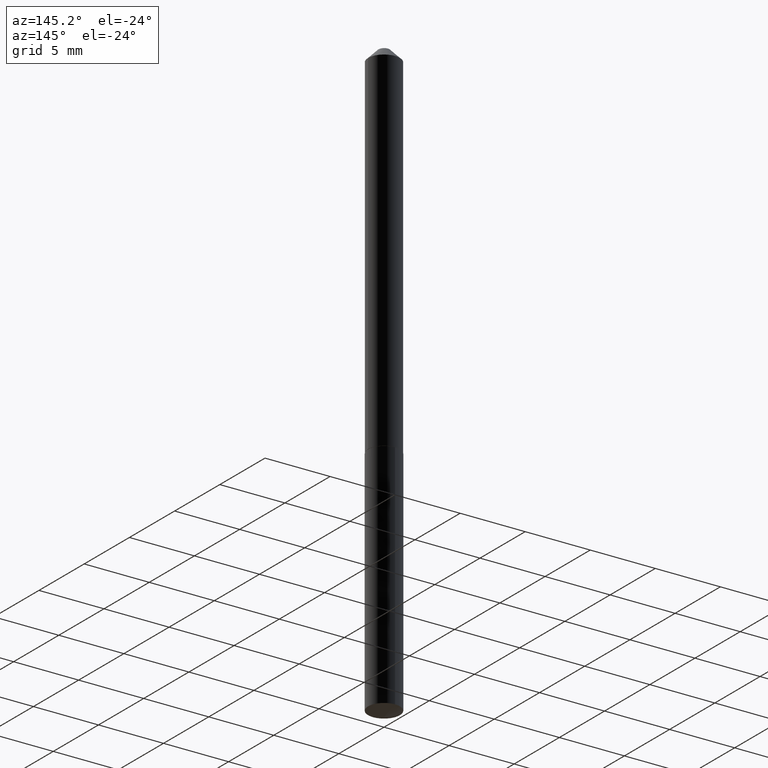
[diagram: clean part render]
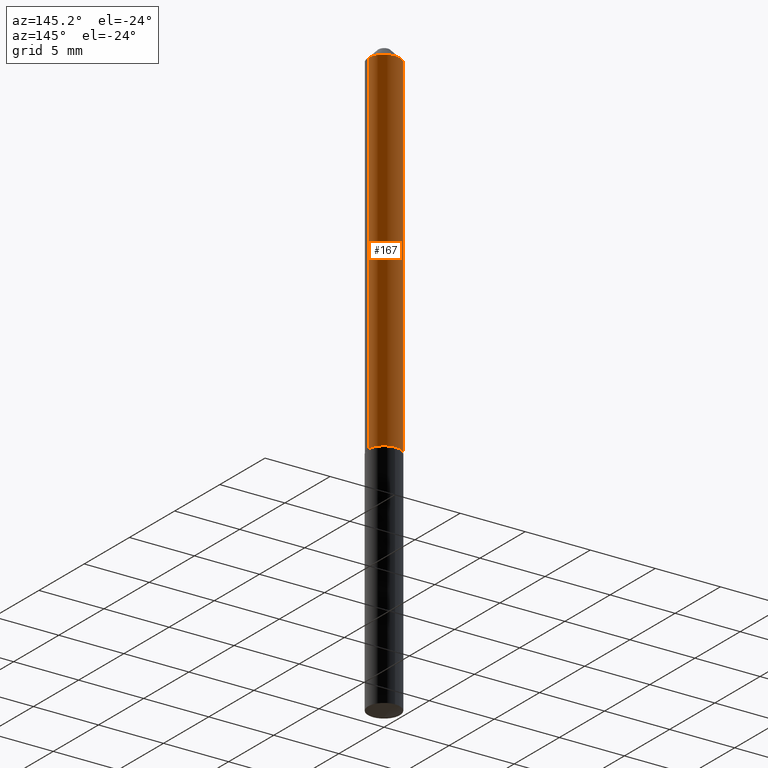
[diagram: same view with one face highlighted and labeled with its STEP entity id]
A machine part, auxiliary view. The second image highlights one B-rep face of the part: STEP entity #167.
In plain terms, the highlighted cylindrical surface (edge-blend (fillet) strip) has radius 1.2192 mm, axis along (-0, 0, 1).
Its self-contained STEP definition (entity closure, byte-faithful):
#1 = CYLINDRICAL_SURFACE ( 'NONE', #334, 0.04800000000000007733 ) ;
#4 = CARTESIAN_POINT ( 'NONE',  ( 7.642090019328601786E-31, -1.091087918388490144E-16, -0.03125000000000020123 ) ) ;
#10 = EDGE_CURVE ( 'NONE', #174, #263, #87, .T. ) ;
#26 = DIRECTION ( 'NONE',  ( -2.445468806185136597E-29, 3.491481338843145583E-15, 1.000000000000000000 ) ) ;
#33 = CARTESIAN_POINT ( 'NONE',  ( 0.04800000000000007733, -3.351822085289413070E-16, 2.340564852382052838E-30 ) ) ;
#44 = CARTESIAN_POINT ( 'NONE',  ( 0.000000000000000000, 0.000000000000000000, 0.000000000000000000 ) ) ;
#59 = DIRECTION ( 'NONE',  ( -2.445468806185136877E-29, 3.491481338843145188E-15, 1.000000000000000000 ) ) ;
#60 = AXIS2_PLACEMENT_3D ( 'NONE', #4, #103, #272 ) ;
#64 = EDGE_CURVE ( 'NONE', #263, #229, #323, .T. ) ;
#77 = CARTESIAN_POINT ( 'NONE',  ( -0.04800000000000013284, -3.483857293537816994E-15, -1.095500000000000140 ) ) ;
#87 = LINE ( 'NONE', #33, #140 ) ;
#103 = DIRECTION ( 'NONE',  ( -2.445468806185136597E-29, 3.491481338843145583E-15, 1.000000000000000000 ) ) ;
#118 = VERTEX_POINT ( 'NONE', #77 ) ;
#122 = VECTOR ( 'NONE', #59, 39.37007874015748143 ) ;
#129 = DIRECTION ( 'NONE',  ( 1.000000000000000000, -6.982962677686265922E-15, 4.876176775795935793E-29 ) ) ;
#140 = VECTOR ( 'NONE', #290, 39.37007874015748143 ) ;
#152 = DIRECTION ( 'NONE',  ( 1.000000000000000000, -6.982962677686262766E-15, 0.000000000000000000 ) ) ;
#167 = ADVANCED_FACE ( 'NONE', ( #308 ), #1, .T. ) ;
#170 = DIRECTION ( 'NONE',  ( -2.445468806185136597E-29, 3.491481338843145583E-15, 1.000000000000000000 ) ) ;
#174 = VERTEX_POINT ( 'NONE', #358 ) ;
#182 = CIRCLE ( 'NONE', #191, 0.04800000000000013284 ) ;
#191 = AXIS2_PLACEMENT_3D ( 'NONE', #294, #26, #152 ) ;
#192 = ORIENTED_EDGE ( 'NONE', *, *, #373, .T. ) ;
#204 = ORIENTED_EDGE ( 'NONE', *, *, #383, .T. ) ;
#209 = CARTESIAN_POINT ( 'NONE',  ( -0.04800000000000007733, 3.410605131648486387E-16, -2.361088843322358304E-30 ) ) ;
#225 = ORIENTED_EDGE ( 'NONE', *, *, #64, .F. ) ;
#229 = VERTEX_POINT ( 'NONE', #382 ) ;
#236 = ORIENTED_EDGE ( 'NONE', *, *, #10, .F. ) ;
#263 = VERTEX_POINT ( 'NONE', #337 ) ;
#272 = DIRECTION ( 'NONE',  ( 1.000000000000000000, -6.982962677686266711E-15, 0.000000000000000000 ) ) ;
#290 = DIRECTION ( 'NONE',  ( -2.445468806185136877E-29, 3.491481338843145188E-15, 1.000000000000000000 ) ) ;
#294 = CARTESIAN_POINT ( 'NONE',  ( 2.679011077175817397E-29, -3.824917806702666569E-15, -1.095500000000000140 ) ) ;
#296 = LINE ( 'NONE', #209, #122 ) ;
#308 = FACE_OUTER_BOUND ( 'NONE', #380, .T. ) ;
#323 = CIRCLE ( 'NONE', #60, 0.04800000000000000794 ) ;
#334 = AXIS2_PLACEMENT_3D ( 'NONE', #44, #170, #129 ) ;
#337 = CARTESIAN_POINT ( 'NONE',  ( 0.04800000000000000794, -4.442910003677899146E-16, -0.03125000000000020123 ) ) ;
#358 = CARTESIAN_POINT ( 'NONE',  ( 0.04800000000000013284, -4.160100015231607876E-15, -1.095500000000000140 ) ) ;
#373 = EDGE_CURVE ( 'NONE', #174, #118, #182, .T. ) ;
#380 = EDGE_LOOP ( 'NONE', ( #192, #204, #225, #236 ) ) ;
#382 = CARTESIAN_POINT ( 'NONE',  ( -0.04800000000000000794, -1.625952786105907865E-15, -0.03125000000000020123 ) ) ;
#383 = EDGE_CURVE ( 'NONE', #118, #229, #296, .T. ) ;